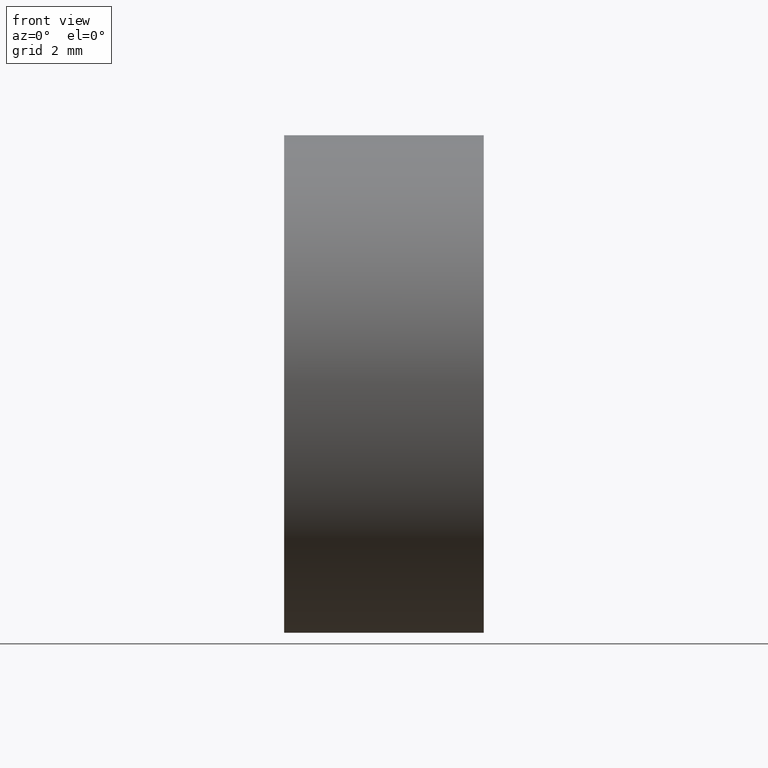
[diagram: clean part render]
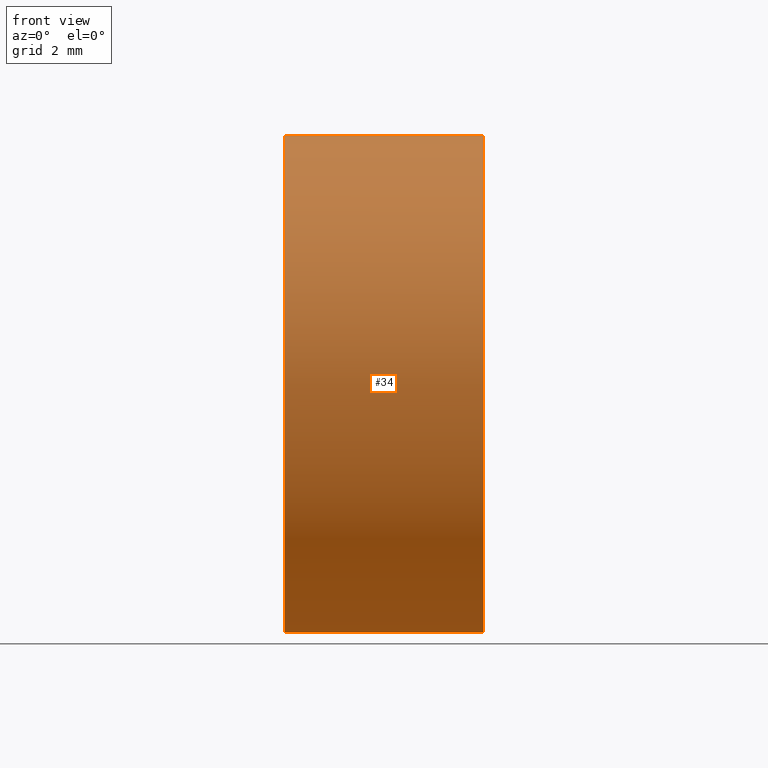
[diagram: same view with one face highlighted and labeled with its STEP entity id]
A machine part, front view. The second image highlights one B-rep face of the part: STEP entity #34.
In plain terms, the highlighted cylindrical surface (partial cylindrical patch) has radius 5 mm, axis along (-1, -0, -0).
Its self-contained STEP definition (entity closure, byte-faithful):
#1 = ORIENTED_EDGE ( 'NONE', *, *, #135, .T. ) ;
#9 = DIRECTION ( 'NONE',  ( -1.000000000000000000, -0.0000000000000000000, -0.0000000000000000000 ) ) ;
#12 = ORIENTED_EDGE ( 'NONE', *, *, #163, .F. ) ;
#22 = EDGE_LOOP ( 'NONE', ( #12, #89, #1, #98, #53, #58 ) ) ;
#23 = CARTESIAN_POINT ( 'NONE',  ( 21.22493055706841100, 13.04452057459747900, 0.0000000000000000000 ) ) ;
#25 = LINE ( 'NONE', #26, #33 ) ;
#26 = CARTESIAN_POINT ( 'NONE',  ( 21.22493055706841100, 13.04452057459747900, 4.999999999999999100 ) ) ;
#27 = EDGE_CURVE ( 'NONE', #134, #49, #38, .T. ) ;
#28 = CARTESIAN_POINT ( 'NONE',  ( 22.01822547579298100, 13.04452057459747900, 4.999999999999999100 ) ) ;
#30 = DIRECTION ( 'NONE',  ( -1.000000000000000000, -0.0000000000000000000, -0.0000000000000000000 ) ) ;
#33 = VECTOR ( 'NONE', #9, 1000.000000000000000 ) ;
#34 = ADVANCED_FACE ( 'NONE', ( #166 ), #162, .T. ) ;
#36 = AXIS2_PLACEMENT_3D ( 'NONE', #148, #30, #180 ) ;
#38 = CIRCLE ( 'NONE', #126, 4.999999999999999100 ) ;
#43 = CARTESIAN_POINT ( 'NONE',  ( 21.22493055706841100, 13.04452057459747900, -4.999999999999999100 ) ) ;
#45 = CARTESIAN_POINT ( 'NONE',  ( 26.03028725195708800, 13.04452057459747900, -4.999999999999995600 ) ) ;
#48 = CARTESIAN_POINT ( 'NONE',  ( 26.03028725195708800, 8.044520574597481000, -6.123233995736762300E-016 ) ) ;
#49 = VERTEX_POINT ( 'NONE', #138 ) ;
#53 = ORIENTED_EDGE ( 'NONE', *, *, #70, .F. ) ;
#58 = ORIENTED_EDGE ( 'NONE', *, *, #27, .F. ) ;
#62 = CARTESIAN_POINT ( 'NONE',  ( 22.01822547579298100, 13.04452057459747900, -4.999999999999999100 ) ) ;
#63 = CARTESIAN_POINT ( 'NONE',  ( 26.03028725195708800, 13.04452057459747900, 0.0000000000000000000 ) ) ;
#70 = EDGE_CURVE ( 'NONE', #49, #117, #231, .T. ) ;
#73 = VECTOR ( 'NONE', #101, 1000.000000000000000 ) ;
#76 = CARTESIAN_POINT ( 'NONE',  ( 22.01822547579298100, 13.04452057459747900, 0.0000000000000000000 ) ) ;
#82 = EDGE_CURVE ( 'NONE', #186, #198, #187, .T. ) ;
#89 = ORIENTED_EDGE ( 'NONE', *, *, #82, .T. ) ;
#93 = DIRECTION ( 'NONE',  ( 0.0000000000000000000, 0.0000000000000000000, 1.000000000000000000 ) ) ;
#98 = ORIENTED_EDGE ( 'NONE', *, *, #102, .T. ) ;
#101 = DIRECTION ( 'NONE',  ( -1.000000000000000000, -0.0000000000000000000, -0.0000000000000000000 ) ) ;
#102 = EDGE_CURVE ( 'NONE', #105, #117, #25, .T. ) ;
#105 = VERTEX_POINT ( 'NONE', #143 ) ;
#108 = CIRCLE ( 'NONE', #36, 4.999999999999995600 ) ;
#112 = AXIS2_PLACEMENT_3D ( 'NONE', #63, #142, #196 ) ;
#115 = DIRECTION ( 'NONE',  ( 0.0000000000000000000, 0.0000000000000000000, 1.000000000000000000 ) ) ;
#117 = VERTEX_POINT ( 'NONE', #28 ) ;
#119 = DIRECTION ( 'NONE',  ( -1.000000000000000000, -0.0000000000000000000, -0.0000000000000000000 ) ) ;
#120 = DIRECTION ( 'NONE',  ( -1.000000000000000000, -0.0000000000000000000, -0.0000000000000000000 ) ) ;
#126 = AXIS2_PLACEMENT_3D ( 'NONE', #194, #193, #93 ) ;
#134 = VERTEX_POINT ( 'NONE', #62 ) ;
#135 = EDGE_CURVE ( 'NONE', #198, #105, #108, .T. ) ;
#138 = CARTESIAN_POINT ( 'NONE',  ( 22.01822547579298100, 8.044520574597481000, -6.123233995736762300E-016 ) ) ;
#141 = DIRECTION ( 'NONE',  ( 0.0000000000000000000, 0.0000000000000000000, 1.000000000000000000 ) ) ;
#142 = DIRECTION ( 'NONE',  ( -1.000000000000000000, -0.0000000000000000000, -0.0000000000000000000 ) ) ;
#143 = CARTESIAN_POINT ( 'NONE',  ( 26.03028725195708800, 13.04452057459747900, 4.999999999999995600 ) ) ;
#148 = CARTESIAN_POINT ( 'NONE',  ( 26.03028725195708800, 13.04452057459747900, 0.0000000000000000000 ) ) ;
#155 = LINE ( 'NONE', #43, #73 ) ;
#162 = CYLINDRICAL_SURFACE ( 'NONE', #174, 4.999999999999999100 ) ;
#163 = EDGE_CURVE ( 'NONE', #186, #134, #155, .T. ) ;
#166 = FACE_OUTER_BOUND ( 'NONE', #22, .T. ) ;
#174 = AXIS2_PLACEMENT_3D ( 'NONE', #23, #119, #115 ) ;
#180 = DIRECTION ( 'NONE',  ( 0.0000000000000000000, 0.0000000000000000000, 1.000000000000000000 ) ) ;
#186 = VERTEX_POINT ( 'NONE', #45 ) ;
#187 = CIRCLE ( 'NONE', #112, 4.999999999999995600 ) ;
#193 = DIRECTION ( 'NONE',  ( -1.000000000000000000, -0.0000000000000000000, -0.0000000000000000000 ) ) ;
#194 = CARTESIAN_POINT ( 'NONE',  ( 22.01822547579298100, 13.04452057459747900, 0.0000000000000000000 ) ) ;
#196 = DIRECTION ( 'NONE',  ( 0.0000000000000000000, 0.0000000000000000000, 1.000000000000000000 ) ) ;
#198 = VERTEX_POINT ( 'NONE', #48 ) ;
#206 = AXIS2_PLACEMENT_3D ( 'NONE', #76, #120, #141 ) ;
#231 = CIRCLE ( 'NONE', #206, 4.999999999999999100 ) ;